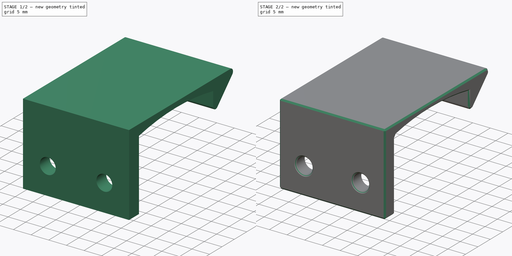
[diagram: build sequence overview — one tinted view per stage of 2, left to right]
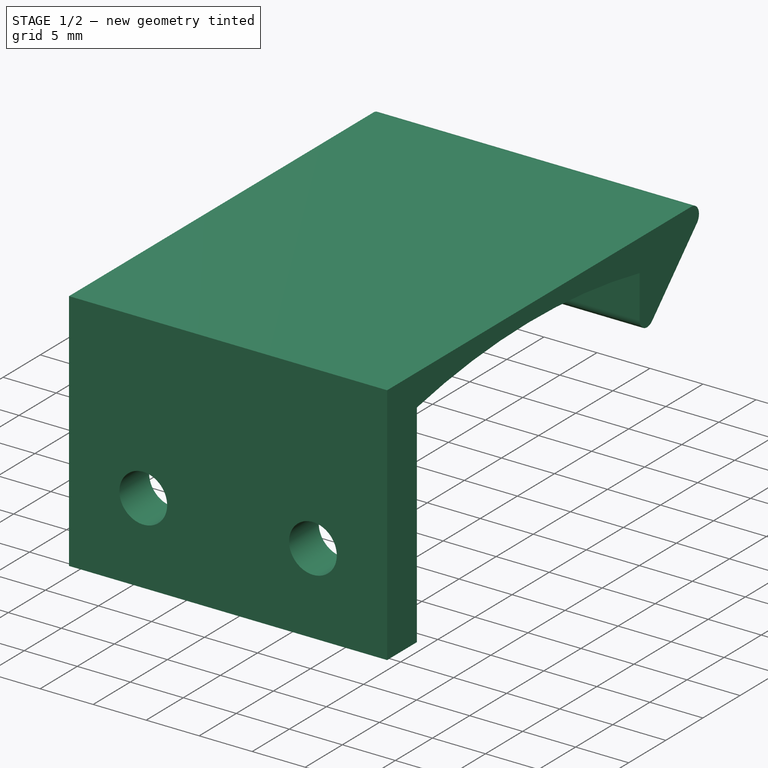
[diagram: stage 1 of 2 — iso view after this stage's code; geometry added in this stage tinted green]
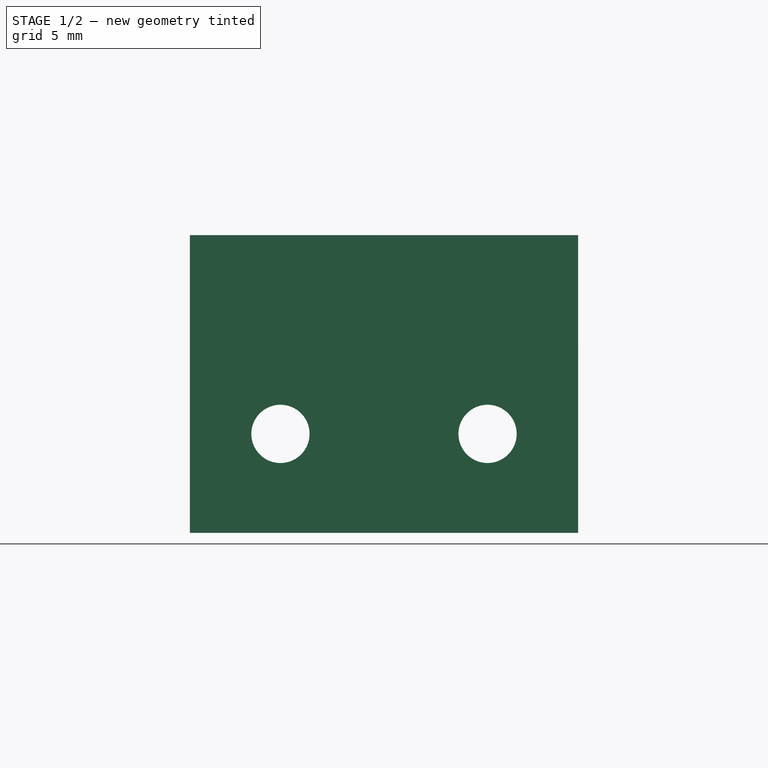
[diagram: stage 1 of 2 — front view after this stage's code; geometry added in this stage tinted green]
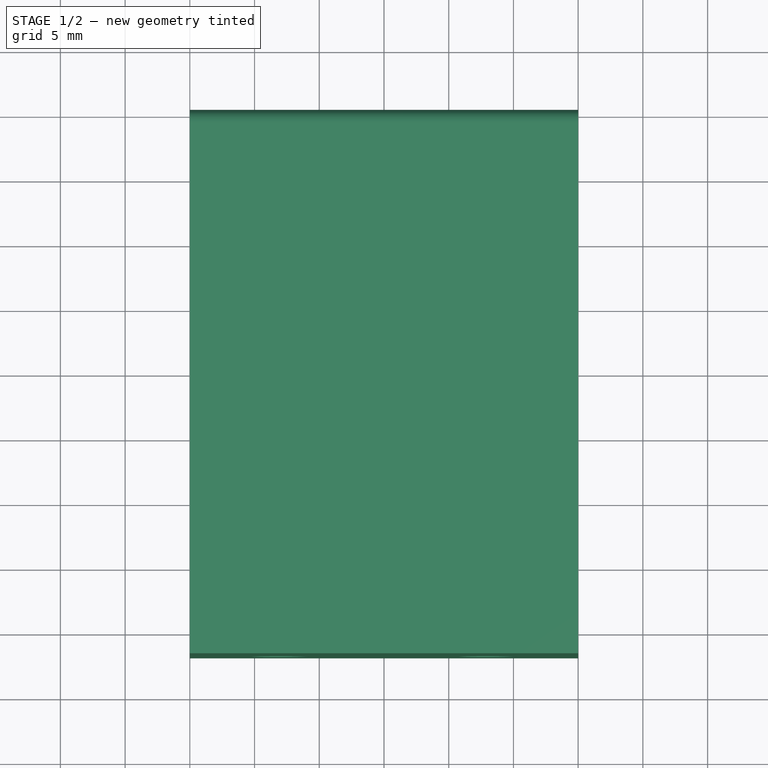
[diagram: stage 1 of 2 — top view after this stage's code; geometry added in this stage tinted green]
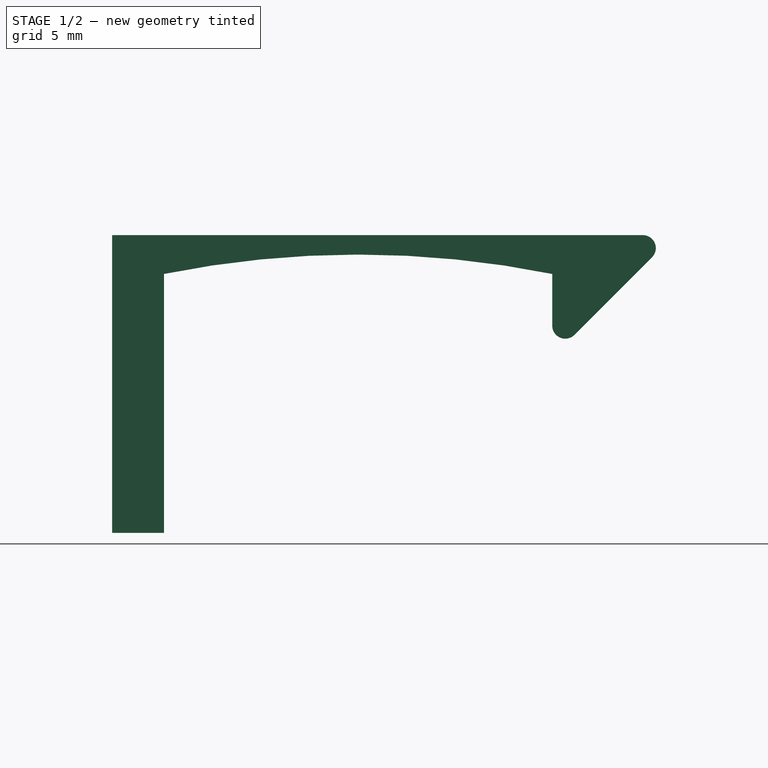
[diagram: stage 1 of 2 — right view after this stage's code; geometry added in this stage tinted green]
FCSTD DOCUMENT  (FreeCAD 0.22R38314 (Git))
Label: latch
License: All rights reserved
LicenseURL: http://en.wikipedia.org/wiki/All_rights_reserved
objects: Sketcher::SketchObject×2, Part::Feature×1, PartDesign::Pad×1, PartDesign::Pocket×1, PartDesign::Chamfer×1, PartDesign::Body×1, App::Link×1
note: 13 computed .brp shape members not serialized (recipe doc carries the construction recipe); baked Part::Feature solids carry a one-line shape summary decoded from their .brp

FEATURE [Part::Feature] Door_Stop002_solid  label="Door_Stop002 (Solid)"
  shape: bbox 25.4 x 38.1 x 79.79 mm, 800 faces (baked)
FEATURE [Sketcher::SketchObject] Sketch
  AttachmentSupport = -> [YZ_Plane]
  FullyConstrained = false
  MapMode = 5
  Placement = pos=(0,0,0) rot=(0.57735,0.57735,0.57735;2.0944rad)
  sketch-geometry (14):
    g0: LineSegment StartX=-66.8215 StartY=51.2615 StartZ=0 EndX=-66.8215 EndY=28.2615 EndZ=0
    g1: LineSegment StartX=-66.8215 StartY=28.2615 StartZ=0 EndX=-62.8215 EndY=28.2615 EndZ=0
    g2: LineSegment StartX=-62.8215 StartY=28.2615 StartZ=0 EndX=-62.8215 EndY=48.2615 EndZ=0
    g3: LineSegment StartX=-32.8215 StartY=48.2615 StartZ=0 EndX=-32.8215 EndY=44.2615 EndZ=0
    g4: LineSegment StartX=-31.1144 StartY=43.5544 StartZ=0 EndX=-25.1144 EndY=49.5544 EndZ=0
    g5: LineSegment StartX=-25.8215 StartY=51.2615 StartZ=0 EndX=-66.8215 EndY=51.2615 EndZ=0
    g6: ArcOfCircle CenterX=-31.8215 CenterY=44.2615 CenterZ=0 NormalX=0 NormalY=0 NormalZ=1 AngleXU=0 Radius=1 StartAngle=3.14159 EndAngle=5.49779
    g7: GeomPoint X=-32.8215 Y=41.8473 Z=0
    g8: ArcOfCircle CenterX=-25.8215 CenterY=50.2615 CenterZ=0 NormalX=0 NormalY=0 NormalZ=1 AngleXU=0 Radius=1 StartAngle=5.49779 EndAngle=7.85398
    g9: GeomPoint X=-23.4073 Y=51.2615 Z=0
    g10: ArcOfCircle CenterX=-47.8215 CenterY=-25.9885 CenterZ=0 NormalX=0 NormalY=0 NormalZ=1 AngleXU=0 Radius=75.75 StartAngle=1.37146 EndAngle=1.77013
    g11: GeomPoint X=-47.8215 Y=48.2615 Z=0
    g12: GeomPoint X=-47.8215 Y=49.7615 Z=0
    g13: GeomPoint X=-47.8215 Y=51.2615 Z=0
  constraints (33):
    c: Vertical(g0)
    c: Coincident(g0,g1)
    c: Horizontal(g1)
    c: Coincident(g1,g2)
    c: Vertical(g2)
    c: Coincident(g5,g0)
    c: Horizontal(g5)
    c: DistanceX(g2,g3) = 30
    c: Vertical(g3)
    c: PointOnObject(g7,g4)
    c: PointOnObject(g7,g3)
    c: Tangent(g4,g6) = -1.5708
    c: Tangent(g3,g6) = -1.5708
    c: Radius(g6) = 1
    c: DistanceY(g3,g3) = 4
    c: DistanceY(g2,g0) = 3
    c: PointOnObject(g9,g5)
    c: PointOnObject(g9,g4)
    c: Tangent(g5,g8) = -1.5708
    c: Tangent(g4,g8) = -1.5708
    c: Equal(g6,g8)
    c: DistanceX(g1,g1) = 4
    c: DistanceY(g2,g2) = 20
    c: Angle(g4,g3) = 0.785398
    c: Horizontal(g2,g3)
    c: Coincident(g10,g2)
    c: Coincident(g10,g3)
    c: Symmetric(g2,g3,g11)
    c: PointOnObject(g12,g10)
    c: Vertical(g12,g11)
    c: PointOnObject(g13,g5)
    c: Vertical(g13,g12)
    c: DistanceY(g12,g13) = 1.5
FEATURE [PartDesign::Pad] Pad
  Direction = (1,0,0)
  Length = 30
  Length2 = 10
  Placement = pos=(0,0,0) rot=(1,1,1;2.0944rad)
  Profile = -> Sketch
  ReferenceAxis = -> Sketch [N_Axis]
  Suppressed = false
  Type = 0
FEATURE [Sketcher::SketchObject] Sketch001
  AttachmentSupport = -> [Pad]
  ExternalGeometry = -> [Pad]
  FullyConstrained = false
  MapMode = 5
  Placement = pos=(-1.39e-14,-62.8215,7e-15) rot=(0.57735,0.57735,0.57735;4.18879rad)
  sketch-geometry (2):
    g0: Circle CenterX=35.9079 CenterY=23 CenterZ=0 NormalX=0 NormalY=0 NormalZ=1 AngleXU=0 Radius=2.25
    g1: Circle CenterX=35.9079 CenterY=7 CenterZ=0 NormalX=0 NormalY=0 NormalZ=1 AngleXU=0 Radius=2.25
  constraints (4):
    c: Equal(g0,g1)
    c: Diameter(g0) = 4.5
    c: Vertical(g1,g0)
    c: DistanceY(g1,g0) = 16
FEATURE [PartDesign::Pocket] Pocket
  BaseFeature = -> Pad
  Direction = (0,-1,0)
  Length = 5
  Length2 = 5
  Placement = pos=(0,0,0) rot=(1,1,1;2.0944rad)
  Profile = -> Sketch001
  ReferenceAxis = -> Sketch001 [N_Axis]
  Suppressed = false
  Type = 0
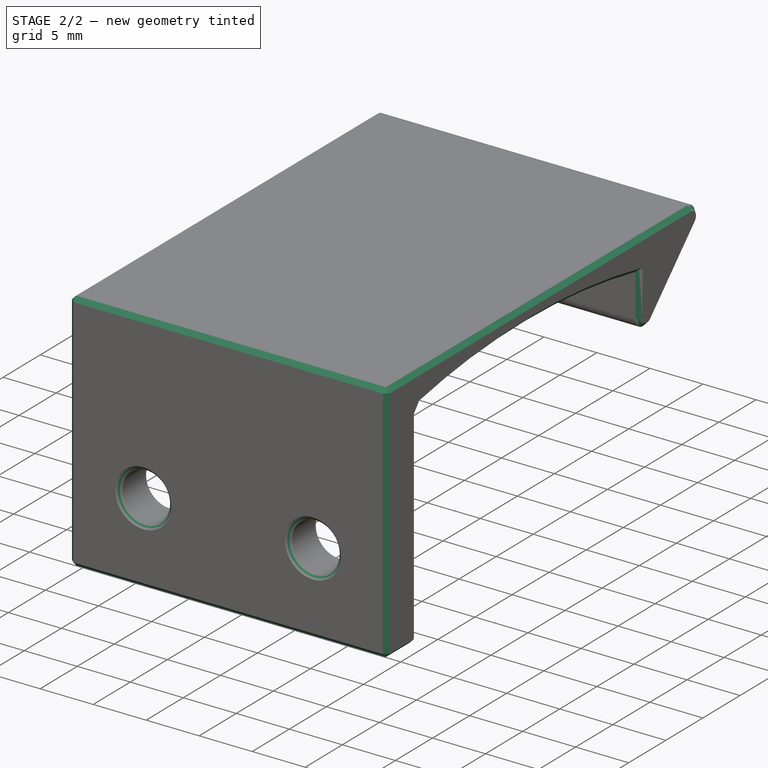
[diagram: stage 2 of 2 — iso view after this stage's code; geometry added in this stage tinted green]
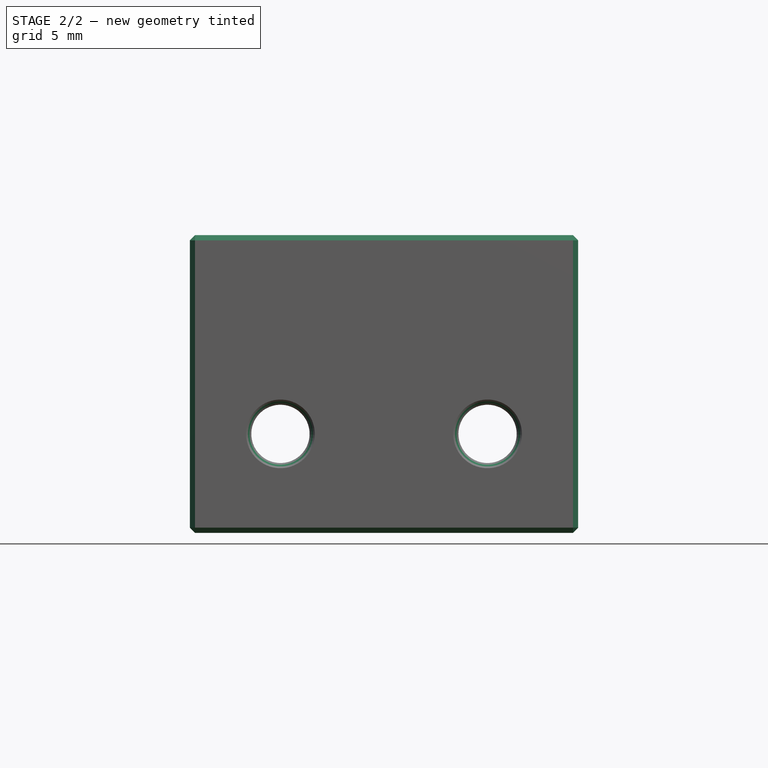
[diagram: stage 2 of 2 — front view after this stage's code; geometry added in this stage tinted green]
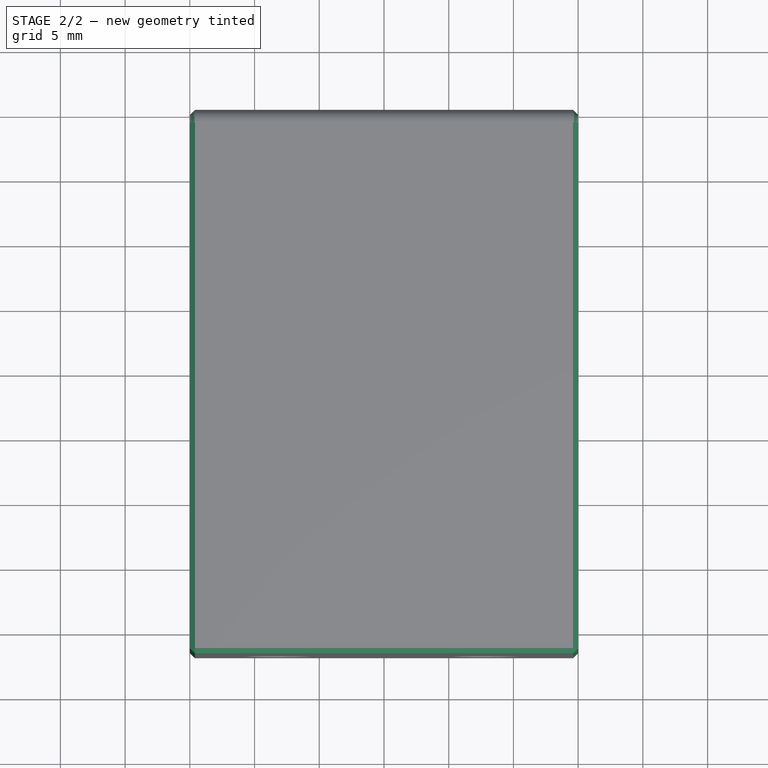
[diagram: stage 2 of 2 — top view after this stage's code; geometry added in this stage tinted green]
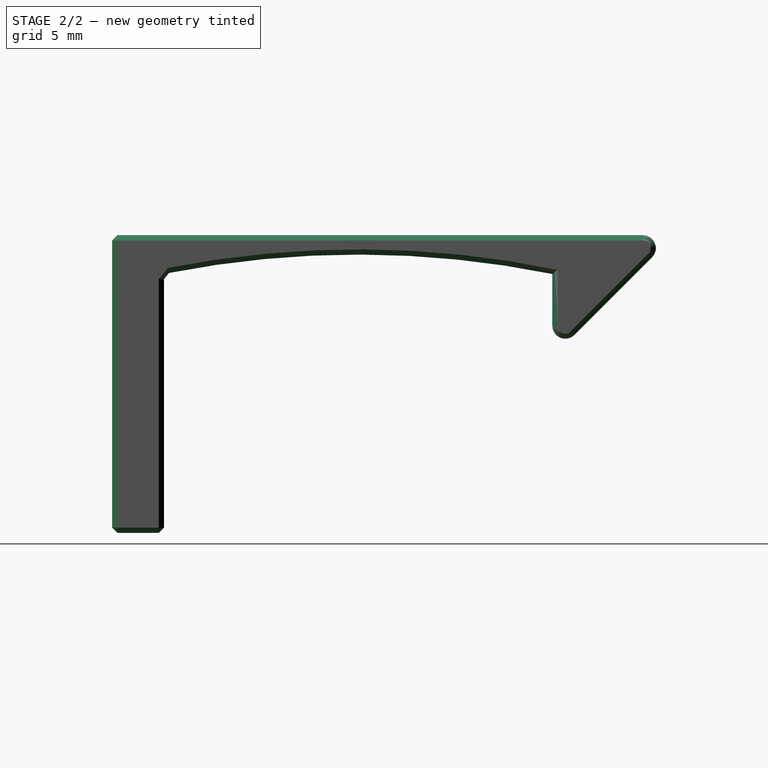
[diagram: stage 2 of 2 — right view after this stage's code; geometry added in this stage tinted green]
FEATURE [PartDesign::Chamfer] Chamfer
  Angle = 45
  Base = -> Pocket [Face5,Face6,Face4,Face10]
  BaseFeature = -> Pocket
  ChamferType = 0
  FlipDirection = false
  Placement = pos=(0,0,0) rot=(1,1,1;2.0944rad)
  Size = 0.4
  Size2 = 1
  SupportTransform = false
  Suppressed = false
  UseAllEdges = false
FEATURE [PartDesign::Body] Body
  AllowCompound = false
  Group = -> [Sketch,Pad,Sketch001,Pocket,Chamfer]
  Origin = -> Origin
  Tip = -> Chamfer
FEATURE [App::Link] Link
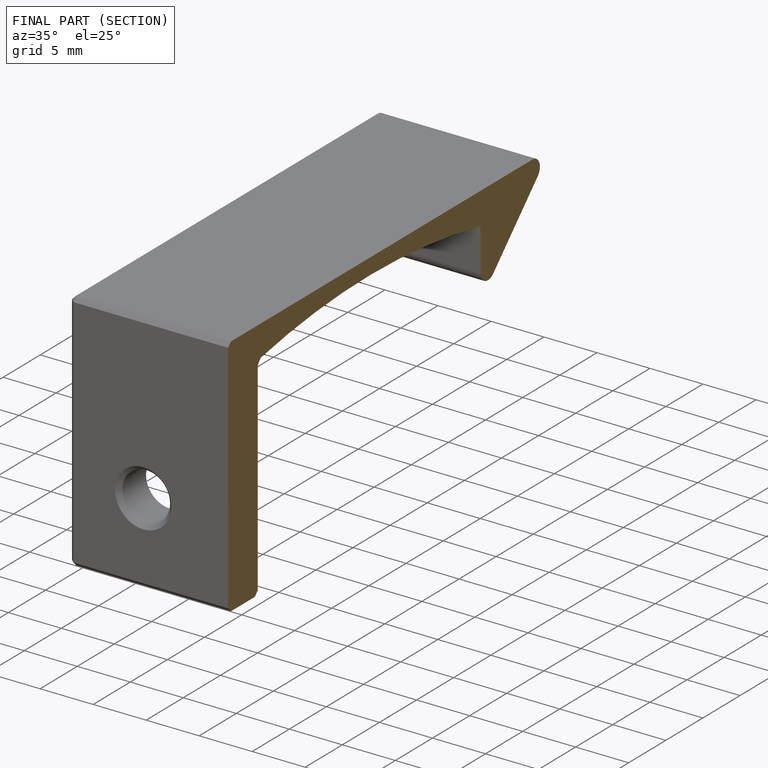
[diagram: finished part — half-section view (interior)]
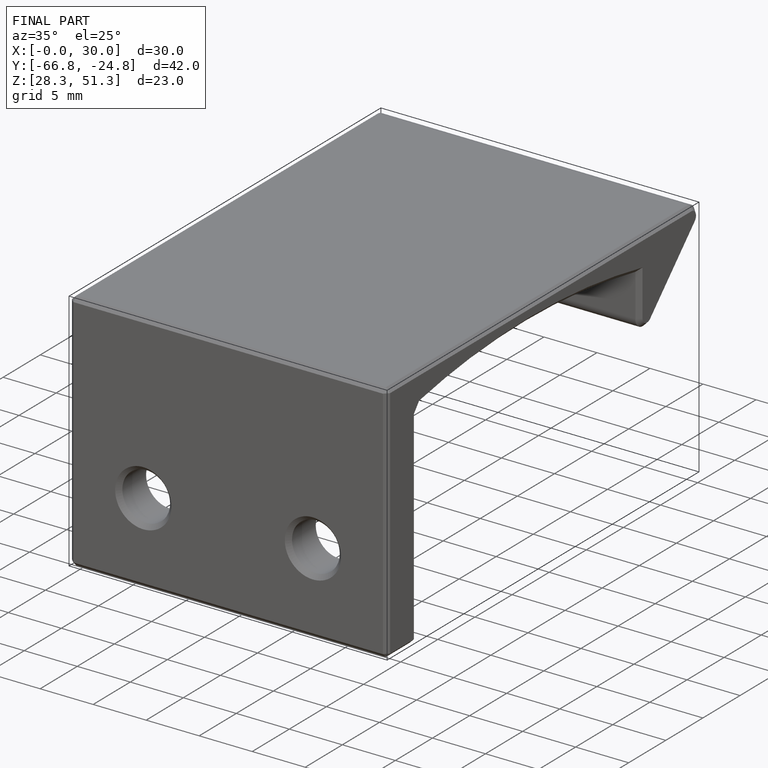
[diagram: finished part — iso view with bounding-box wireframe]
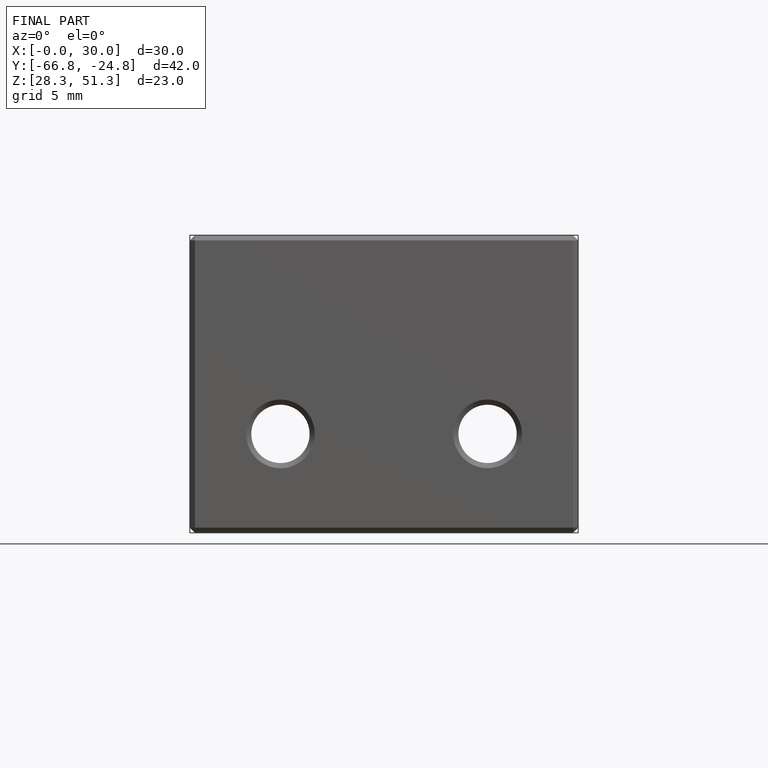
[diagram: finished part — front view with bounding-box wireframe]
